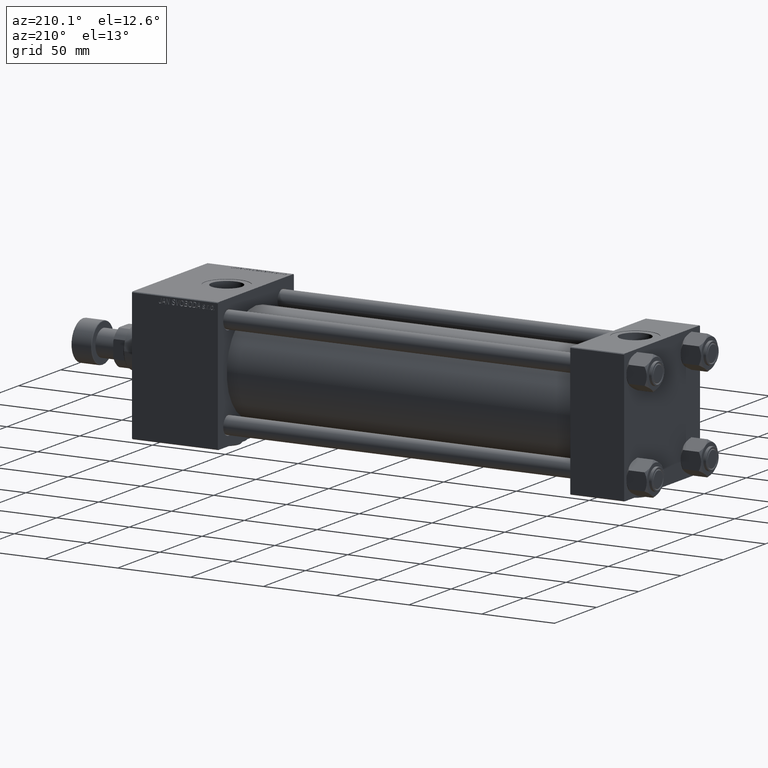
[diagram: clean part render]
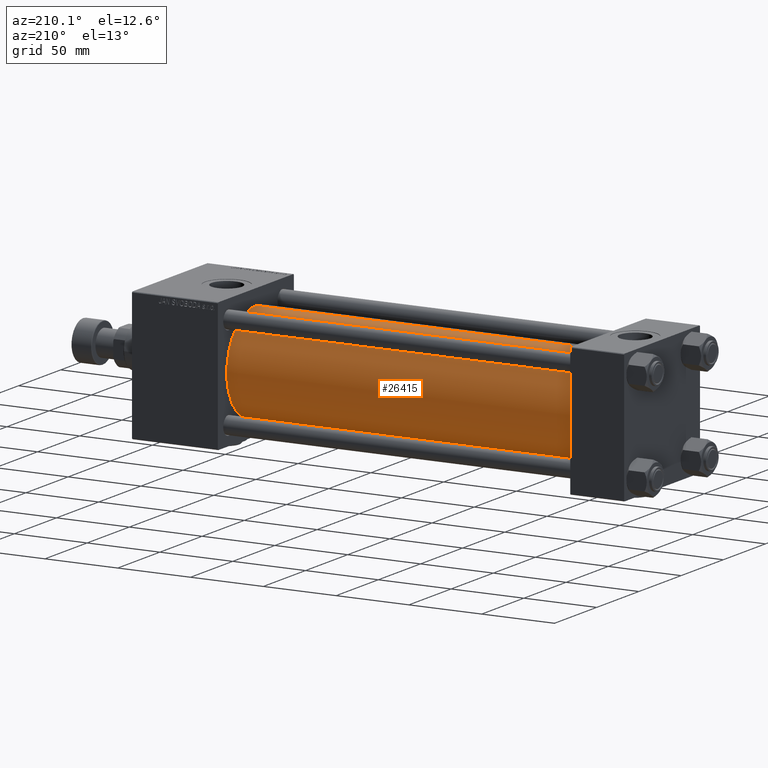
[diagram: same view with one face highlighted and labeled with its STEP entity id]
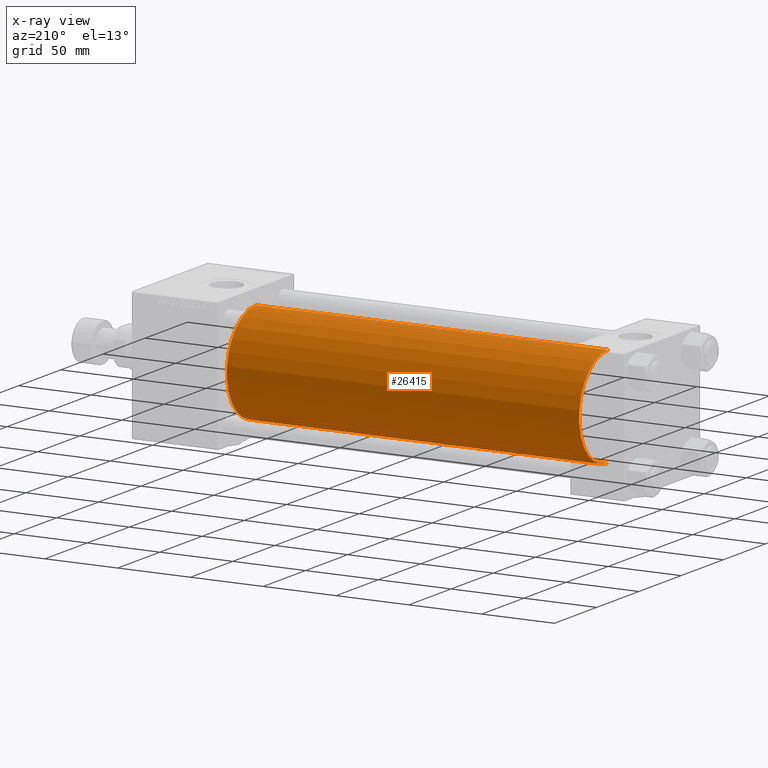
[diagram: x-ray of the same camera — body ghosted, the highlighted face saturated]
A machine part, auxiliary view. The second image highlights one B-rep face of the part: STEP entity #26415.
The next image is the same camera in x-ray: the body ghosted, the highlighted face saturated — about 0% of this face is hidden behind the body in this view.
In plain terms, the highlighted cylindrical surface (partial cylindrical patch) has radius 34.5 mm, axis along (-1, -0, -0).
Its self-contained STEP definition (entity closure, byte-faithful):
#449 = EDGE_LOOP ( 'NONE', ( #16097, #20402, #7473, #23872 ) ) ;
#1084 = VECTOR ( 'NONE', #40473, 1000.000000000000000 ) ;
#1371 = CARTESIAN_POINT ( 'NONE',  ( 278.9999999999999432, 1.622946243093158675E-15, -34.50000000000000000 ) ) ;
#1829 = DIRECTION ( 'NONE',  ( -1.000000000000000000, -0.000000000000000000, -0.000000000000000000 ) ) ;
#1895 = VERTEX_POINT ( 'NONE', #42002 ) ;
#2035 = VERTEX_POINT ( 'NONE', #2761 ) ;
#2761 = CARTESIAN_POINT ( 'NONE',  ( 278.9999999999999432, -2.602085213965210642E-15, 34.50000000000000000 ) ) ;
#3653 = CARTESIAN_POINT ( 'NONE',  ( 278.9999999999999432, -2.602085213965210642E-15, 34.50000000000000000 ) ) ;
#6359 = LINE ( 'NONE', #38892, #25115 ) ;
#7473 = ORIENTED_EDGE ( 'NONE', *, *, #26445, .T. ) ;
#11825 = VERTEX_POINT ( 'NONE', #45575 ) ;
#15313 = AXIS2_PLACEMENT_3D ( 'NONE', #22085, #1829, #34621 ) ;
#15519 = DIRECTION ( 'NONE',  ( 0.000000000000000000, 0.000000000000000000, -1.000000000000000000 ) ) ;
#16097 = ORIENTED_EDGE ( 'NONE', *, *, #42277, .F. ) ;
#16449 = EDGE_CURVE ( 'NONE', #20646, #11825, #6359, .T. ) ;
#17857 = CYLINDRICAL_SURFACE ( 'NONE', #15313, 34.50000000000000000 ) ;
#18117 = FACE_OUTER_BOUND ( 'NONE', #449, .T. ) ;
#18630 = DIRECTION ( 'NONE',  ( 0.000000000000000000, 0.000000000000000000, 1.000000000000000000 ) ) ;
#18881 = DIRECTION ( 'NONE',  ( -1.000000000000000000, -0.000000000000000000, -0.000000000000000000 ) ) ;
#20391 = CIRCLE ( 'NONE', #40845, 34.50000000000000000 ) ;
#20402 = ORIENTED_EDGE ( 'NONE', *, *, #16449, .T. ) ;
#20646 = VERTEX_POINT ( 'NONE', #1371 ) ;
#22085 = CARTESIAN_POINT ( 'NONE',  ( 278.9999999999999432, -2.602085213965210642E-15, 0.000000000000000000 ) ) ;
#23872 = ORIENTED_EDGE ( 'NONE', *, *, #33274, .F. ) ;
#23927 = LINE ( 'NONE', #3653, #1084 ) ;
#25115 = VECTOR ( 'NONE', #18881, 1000.000000000000000 ) ;
#26415 = ADVANCED_FACE ( 'NONE', ( #18117 ), #17857, .T. ) ;
#26445 = EDGE_CURVE ( 'NONE', #11825, #1895, #20391, .T. ) ;
#29396 = CIRCLE ( 'NONE', #42218, 34.50000000000000000 ) ;
#33274 = EDGE_CURVE ( 'NONE', #2035, #1895, #23927, .T. ) ;
#34621 = DIRECTION ( 'NONE',  ( 0.000000000000000000, 0.000000000000000000, 1.000000000000000000 ) ) ;
#36581 = CARTESIAN_POINT ( 'NONE',  ( 278.9999999999999432, -2.602085213965210642E-15, 0.000000000000000000 ) ) ;
#37834 = CARTESIAN_POINT ( 'NONE',  ( 37.00000000000000711, -2.602085213965210642E-15, 0.000000000000000000 ) ) ;
#38892 = CARTESIAN_POINT ( 'NONE',  ( 278.9999999999999432, 1.622946243093158675E-15, -34.50000000000000000 ) ) ;
#40473 = DIRECTION ( 'NONE',  ( -1.000000000000000000, -0.000000000000000000, -0.000000000000000000 ) ) ;
#40845 = AXIS2_PLACEMENT_3D ( 'NONE', #37834, #42099, #18630 ) ;
#42002 = CARTESIAN_POINT ( 'NONE',  ( 37.00000000000000711, -2.602085213965210642E-15, 34.50000000000000000 ) ) ;
#42099 = DIRECTION ( 'NONE',  ( 1.000000000000000000, -0.000000000000000000, 0.000000000000000000 ) ) ;
#42218 = AXIS2_PLACEMENT_3D ( 'NONE', #36581, #48840, #15519 ) ;
#42277 = EDGE_CURVE ( 'NONE', #20646, #2035, #29396, .T. ) ;
#45575 = CARTESIAN_POINT ( 'NONE',  ( 37.00000000000000711, 1.622946243093158675E-15, -34.50000000000000000 ) ) ;
#48840 = DIRECTION ( 'NONE',  ( 1.000000000000000000, 0.000000000000000000, 0.000000000000000000 ) ) ;